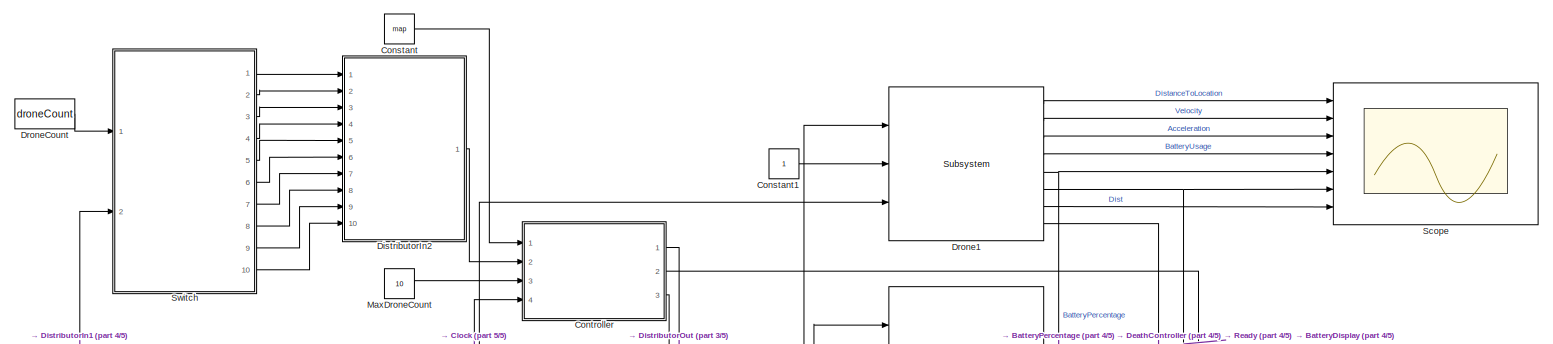
[diagram: root canvas - part 1/5, full width, top band]
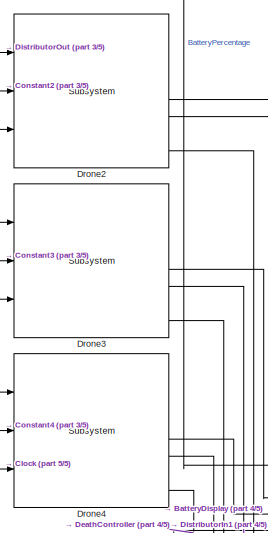
[diagram: root canvas - part 2/5, top center region]
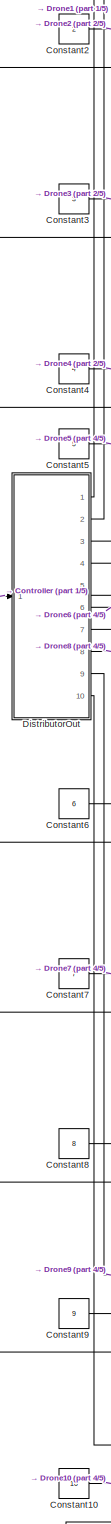
[diagram: root canvas - part 3/5, center side, full height]
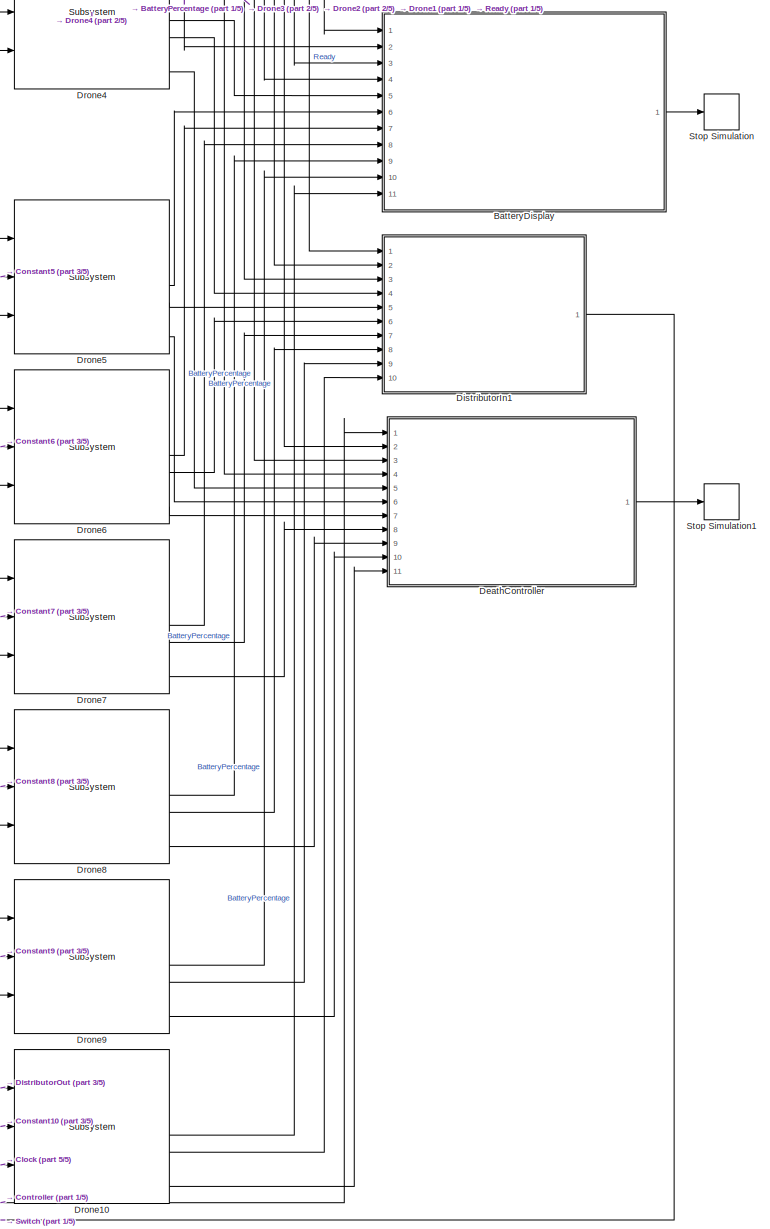
[diagram: root canvas - part 4/5, bottom right region]
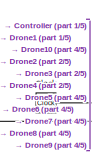
[diagram: root canvas - part 5/5, bottom left region]
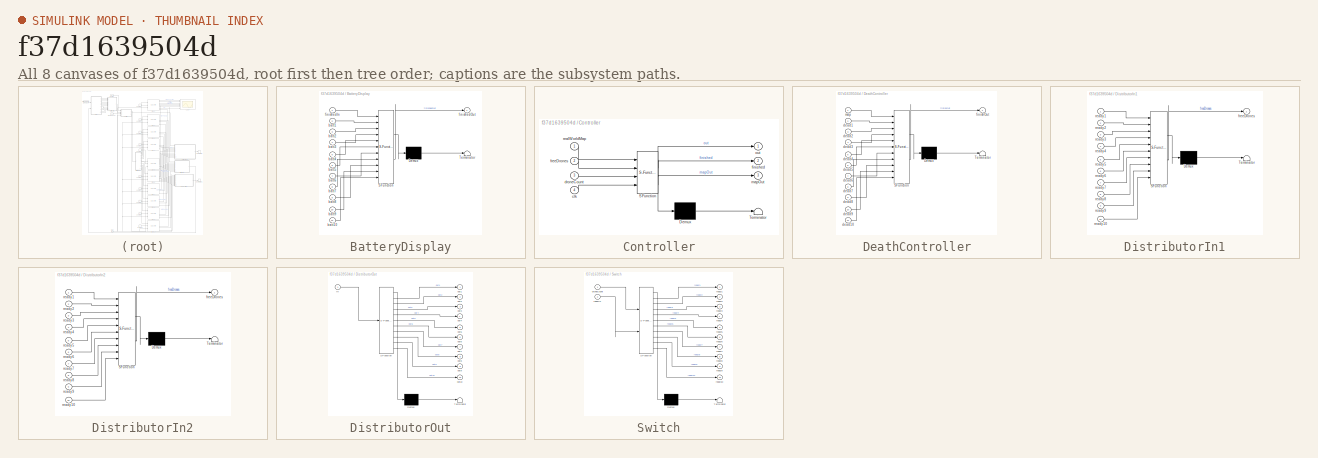
[diagram: thumbnail index - all 8 canvases of the model, root first then tree order]
MODEL slx_f37d1639504d
KIND model
CONFIG AbsTol = auto
CONFIG EnableMultiTasking = off
CONFIG FixedStep = 1
CONFIG MaxStep = auto
CONFIG MinStep = auto
CONFIG RelTol = 1e-3
CONFIG SampleTimeConstraint = Unconstrained
CONFIG SolverName = FixedStepAuto
CONFIG StartTime = 0.0
CONFIG StopTime = inf
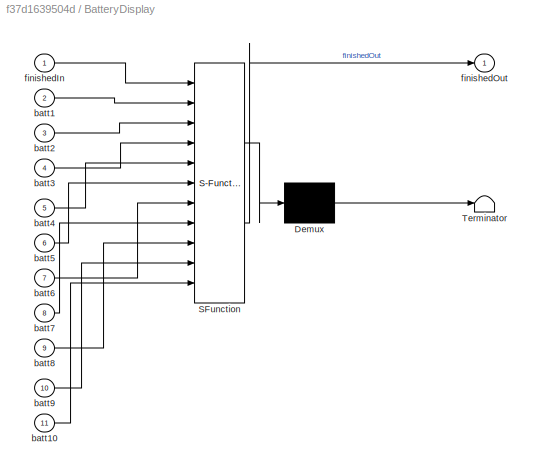
BLOCK [SubSystem] BatteryDisplay
  ErrorFcn = Stateflow.Translate.translate
  PermitHierarchicalResolution = ExplicitOnly
  Ports = [11, 1]
  RequestExecContextInheritance = off
  SFBlockType = MATLAB Function
  TreatAsAtomicUnit = on
BLOCK [Demux] BatteryDisplay/ Demux 
  Outputs = 1
  Ports = [1, 1]
BLOCK [S-Function] BatteryDisplay/ SFunction 
  EnableBusSupport = on
  FunctionName = sf_sfun
  PortCounts = [11 2]
  Ports = [11, 2]
  SFcnIsStateOwnerBlock = off
  SFunctionDeploymentMode = off
  Tag = Stateflow S-Function 13
BLOCK [Terminator] BatteryDisplay/ Terminator 
BLOCK [Inport] BatteryDisplay/batt1
  Port = 2
BLOCK [Inport] BatteryDisplay/batt10
  Port = 11
BLOCK [Inport] BatteryDisplay/batt2
  Port = 3
BLOCK [Inport] BatteryDisplay/batt3
  Port = 4
BLOCK [Inport] BatteryDisplay/batt4
  Port = 5
BLOCK [Inport] BatteryDisplay/batt5
  Port = 6
BLOCK [Inport] BatteryDisplay/batt6
  Port = 7
BLOCK [Inport] BatteryDisplay/batt7
  Port = 8
BLOCK [Inport] BatteryDisplay/batt8
  Port = 9
BLOCK [Inport] BatteryDisplay/batt9
  Port = 10
BLOCK [Inport] BatteryDisplay/finishedIn
BLOCK [Outport] BatteryDisplay/finishedOut
BLOCK [Clock] Clock
BLOCK [Constant] Constant
  Value = map
  VectorParams1D = off
BLOCK [Constant] Constant1
BLOCK [Constant] Constant10
  Value = 10
BLOCK [Constant] Constant2
  Value = 2
BLOCK [Constant] Constant3
  Value = 3
BLOCK [Constant] Constant4
  Value = 4
BLOCK [Constant] Constant5
  Value = 5
BLOCK [Constant] Constant6
  Value = 6
BLOCK [Constant] Constant7
  Value = 7
BLOCK [Constant] Constant8
  Value = 8
BLOCK [Constant] Constant9
  Value = 9
BLOCK [SubSystem] Controller
  ErrorFcn = Stateflow.Translate.translate
  PermitHierarchicalResolution = ExplicitOnly
  Ports = [4, 3]
  RequestExecContextInheritance = off
  SFBlockType = MATLAB Function
  TreatAsAtomicUnit = on
BLOCK [Demux] Controller/ Demux 
  Outputs = 1
  Ports = [1, 1]
BLOCK [S-Function] Controller/ SFunction 
  EnableBusSupport = on
  FunctionName = sf_sfun
  PortCounts = [4 4]
  Ports = [4, 4]
  SFcnIsStateOwnerBlock = off
  SFunctionDeploymentMode = off
  Tag = Stateflow S-Function 2
BLOCK [Terminator] Controller/ Terminator 
BLOCK [Inport] Controller/clk
  Port = 4
BLOCK [Inport] Controller/droneCount
  Port = 3
BLOCK [Outport] Controller/finished
  Port = 2
BLOCK [Inport] Controller/freeDrones
  Port = 2
BLOCK [Outport] Controller/mapOut
  Port = 3
BLOCK [Outport] Controller/out
BLOCK [Inport] Controller/realWorldMap
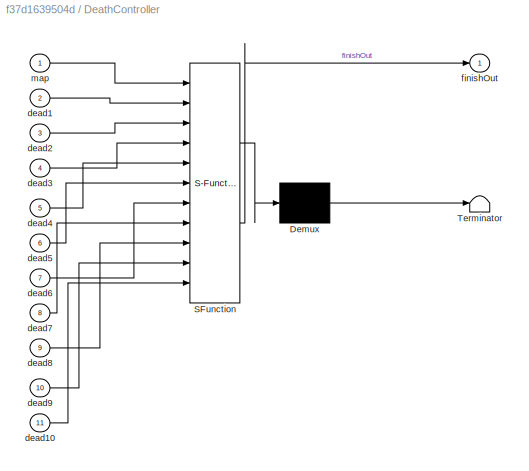
BLOCK [SubSystem] DeathController
  ErrorFcn = Stateflow.Translate.translate
  PermitHierarchicalResolution = ExplicitOnly
  Ports = [11, 1]
  RequestExecContextInheritance = off
  SFBlockType = MATLAB Function
  TreatAsAtomicUnit = on
BLOCK [Demux] DeathController/ Demux 
  Outputs = 1
  Ports = [1, 1]
BLOCK [S-Function] DeathController/ SFunction 
  EnableBusSupport = on
  FunctionName = sf_sfun
  PortCounts = [11 2]
  Ports = [11, 2]
  SFcnIsStateOwnerBlock = off
  SFunctionDeploymentMode = off
  Tag = Stateflow S-Function 14
BLOCK [Terminator] DeathController/ Terminator 
BLOCK [Inport] DeathController/dead1
  Port = 2
BLOCK [Inport] DeathController/dead10
  Port = 11
BLOCK [Inport] DeathController/dead2
  Port = 3
BLOCK [Inport] DeathController/dead3
  Port = 4
BLOCK [Inport] DeathController/dead4
  Port = 5
BLOCK [Inport] DeathController/dead5
  Port = 6
BLOCK [Inport] DeathController/dead6
  Port = 7
BLOCK [Inport] DeathController/dead7
  Port = 8
BLOCK [Inport] DeathController/dead8
  Port = 9
BLOCK [Inport] DeathController/dead9
  Port = 10
BLOCK [Outport] DeathController/finishOut
BLOCK [Inport] DeathController/map
BLOCK [SubSystem] DistributorIn1
  ErrorFcn = Stateflow.Translate.translate
  PermitHierarchicalResolution = ExplicitOnly
  Ports = [10, 1]
  RequestExecContextInheritance = off
  SFBlockType = MATLAB Function
  TreatAsAtomicUnit = on
BLOCK [Demux] DistributorIn1/ Demux 
  Outputs = 1
  Ports = [1, 1]
BLOCK [S-Function] DistributorIn1/ SFunction 
  EnableBusSupport = on
  FunctionName = sf_sfun
  PortCounts = [10 2]
  Ports = [10, 2]
  SFcnIsStateOwnerBlock = off
  SFunctionDeploymentMode = off
  Tag = Stateflow S-Function 22
BLOCK [Terminator] DistributorIn1/ Terminator 
BLOCK [Outport] DistributorIn1/freeDrones
BLOCK [Inport] DistributorIn1/ready1
BLOCK [Inport] DistributorIn1/ready10
  Port = 10
BLOCK [Inport] DistributorIn1/ready2
  Port = 2
BLOCK [Inport] DistributorIn1/ready3
  Port = 3
BLOCK [Inport] DistributorIn1/ready4
  Port = 4
BLOCK [Inport] DistributorIn1/ready5
  Port = 5
BLOCK [Inport] DistributorIn1/ready6
  Port = 6
BLOCK [Inport] DistributorIn1/ready7
  Port = 7
BLOCK [Inport] DistributorIn1/ready8
  Port = 8
BLOCK [Inport] DistributorIn1/ready9
  Port = 9
BLOCK [SubSystem] DistributorIn2
  ErrorFcn = Stateflow.Translate.translate
  PermitHierarchicalResolution = ExplicitOnly
  Ports = [10, 1]
  RequestExecContextInheritance = off
  SFBlockType = MATLAB Function
  TreatAsAtomicUnit = on
BLOCK [Demux] DistributorIn2/ Demux 
  Outputs = 1
  Ports = [1, 1]
BLOCK [S-Function] DistributorIn2/ SFunction 
  EnableBusSupport = on
  FunctionName = sf_sfun
  PortCounts = [10 2]
  Ports = [10, 2]
  SFcnIsStateOwnerBlock = off
  SFunctionDeploymentMode = off
  Tag = Stateflow S-Function 7
BLOCK [Terminator] DistributorIn2/ Terminator 
BLOCK [Outport] DistributorIn2/freeDrones
BLOCK [Inport] DistributorIn2/ready1
BLOCK [Inport] DistributorIn2/ready10
  Port = 10
BLOCK [Inport] DistributorIn2/ready2
  Port = 2
BLOCK [Inport] DistributorIn2/ready3
  Port = 3
BLOCK [Inport] DistributorIn2/ready4
  Port = 4
BLOCK [Inport] DistributorIn2/ready5
  Port = 5
BLOCK [Inport] DistributorIn2/ready6
  Port = 6
BLOCK [Inport] DistributorIn2/ready7
  Port = 7
BLOCK [Inport] DistributorIn2/ready8
  Port = 8
BLOCK [Inport] DistributorIn2/ready9
  Port = 9
BLOCK [SubSystem] DistributorOut
  ErrorFcn = Stateflow.Translate.translate
  PermitHierarchicalResolution = ExplicitOnly
  Ports = [1, 10]
  RequestExecContextInheritance = off
  SFBlockType = MATLAB Function
  TreatAsAtomicUnit = on
BLOCK [Demux] DistributorOut/ Demux 
  Outputs = 1
  Ports = [1, 1]
BLOCK [S-Function] DistributorOut/ SFunction 
  EnableBusSupport = on
  FunctionName = sf_sfun
  PortCounts = [1 11]
  Ports = [1, 11]
  SFcnIsStateOwnerBlock = off
  SFunctionDeploymentMode = off
  Tag = Stateflow S-Function 6
BLOCK [Terminator] DistributorOut/ Terminator 
BLOCK [Inport] DistributorOut/in
BLOCK [Outport] DistributorOut/out1
BLOCK [Outport] DistributorOut/out10
  Port = 10
BLOCK [Outport] DistributorOut/out2
  Port = 2
BLOCK [Outport] DistributorOut/out3
  Port = 3
BLOCK [Outport] DistributorOut/out4
  Port = 4
BLOCK [Outport] DistributorOut/out5
  Port = 5
BLOCK [Outport] DistributorOut/out6
  Port = 6
BLOCK [Outport] DistributorOut/out7
  Port = 7
BLOCK [Outport] DistributorOut/out8
  Port = 8
BLOCK [Outport] DistributorOut/out9
  Port = 9
BLOCK [Reference] Drone1  REF=drone/Subsystem  (lib defined in slx_0cdc8703c930, slx_1c70fff24f77, +7 more)
  Ports = [3, 8]
  SourceBlock = drone/Subsystem
  SourceType = SubSystem
BLOCK [Reference] Drone10  REF=drone/Subsystem  (lib defined in slx_0cdc8703c930, slx_1c70fff24f77, +7 more)
  Ports = [3, 8]
  SourceBlock = drone/Subsystem
  SourceType = SubSystem
BLOCK [Reference] Drone2  REF=drone/Subsystem  (lib defined in slx_0cdc8703c930, slx_1c70fff24f77, +7 more)
  Ports = [3, 8]
  SourceBlock = drone/Subsystem
  SourceType = SubSystem
BLOCK [Reference] Drone3  REF=drone/Subsystem  (lib defined in slx_0cdc8703c930, slx_1c70fff24f77, +7 more)
  Ports = [3, 8]
  SourceBlock = drone/Subsystem
  SourceType = SubSystem
BLOCK [Reference] Drone4  REF=drone/Subsystem  (lib defined in slx_0cdc8703c930, slx_1c70fff24f77, +7 more)
  Ports = [3, 8]
  SourceBlock = drone/Subsystem
  SourceType = SubSystem
BLOCK [Reference] Drone5  REF=drone/Subsystem  (lib defined in slx_0cdc8703c930, slx_1c70fff24f77, +7 more)
  Ports = [3, 8]
  SourceBlock = drone/Subsystem
  SourceType = SubSystem
BLOCK [Reference] Drone6   REF=drone/Subsystem  (lib defined in slx_0cdc8703c930, slx_1c70fff24f77, +7 more)
  Ports = [3, 8]
  SourceBlock = drone/Subsystem
  SourceType = SubSystem
BLOCK [Reference] Drone7  REF=drone/Subsystem  (lib defined in slx_0cdc8703c930, slx_1c70fff24f77, +7 more)
  Ports = [3, 8]
  SourceBlock = drone/Subsystem
  SourceType = SubSystem
BLOCK [Reference] Drone8  REF=drone/Subsystem  (lib defined in slx_0cdc8703c930, slx_1c70fff24f77, +7 more)
  Ports = [3, 8]
  SourceBlock = drone/Subsystem
  SourceType = SubSystem
BLOCK [Reference] Drone9  REF=drone/Subsystem  (lib defined in slx_0cdc8703c930, slx_1c70fff24f77, +7 more)
  Ports = [3, 8]
  SourceBlock = drone/Subsystem
  SourceType = SubSystem
BLOCK [Constant] DroneCount
  Value = droneCount
BLOCK [Constant] MaxDroneCount
  Value = 10
BLOCK [Scope] Scope
  Floating = off
  NumInputPorts = 7
  Ports = [7]
  ScopeSpecificationString = Simulink.scopes.TimeScopeBlockCfg('CurrentConfiguration', extmgr.ConfigurationSet(extmgr.Configuration('Core','General UI',true),extmgr.Configuration('Core','Source UI',true),extmgr.Configuration('Sources','WiredSimulink',true),extmgr.Configuration('Visuals','Time Domain',true,'SerializedDisplays',{struct('MinYLimReal','-10.15691','MaxYLimReal','14.63173','YLabelReal','','MinYLimMag','0.00000','Ma...<+1705ch>
BLOCK [Stop] Stop Simulation
BLOCK [Stop] Stop Simulation1
BLOCK [SubSystem] Switch
  ErrorFcn = Stateflow.Translate.translate
  PermitHierarchicalResolution = ExplicitOnly
  Ports = [2, 10]
  RequestExecContextInheritance = off
  SFBlockType = MATLAB Function
  TreatAsAtomicUnit = on
BLOCK [Demux] Switch/ Demux 
  Outputs = 1
  Ports = [1, 1]
BLOCK [S-Function] Switch/ SFunction 
  EnableBusSupport = on
  FunctionName = sf_sfun
  PortCounts = [2 11]
  Ports = [2, 11]
  SFcnIsStateOwnerBlock = off
  SFunctionDeploymentMode = off
  Tag = Stateflow S-Function 21
BLOCK [Terminator] Switch/ Terminator 
BLOCK [Inport] Switch/droneCount
BLOCK [Outport] Switch/ready1
BLOCK [Outport] Switch/ready10
  Port = 10
BLOCK [Outport] Switch/ready2
  Port = 2
BLOCK [Outport] Switch/ready3
  Port = 3
BLOCK [Outport] Switch/ready4
  Port = 4
BLOCK [Outport] Switch/ready5
  Port = 5
BLOCK [Outport] Switch/ready6
  Port = 6
BLOCK [Outport] Switch/ready7
  Port = 7
BLOCK [Outport] Switch/ready8
  Port = 8
BLOCK [Outport] Switch/ready9
  Port = 9
BLOCK [Inport] Switch/readyIn
  Port = 2
LINE BatteryDisplay:1 -> Stop Simulation:1
NET Clock:1 -> Controller:4, Drone10:3, Drone1:3, Drone2:3, Drone3:3, Drone4:3, Drone5:3, Drone6 :3, Drone7:3, Drone8:3, Drone9:3
LINE Constant10:1 -> Drone10:2
LINE Constant1:1 -> Drone1:2
LINE Constant2:1 -> Drone2:2
LINE Constant3:1 -> Drone3:2
LINE Constant4:1 -> Drone4:2
LINE Constant5:1 -> Drone5:2
LINE Constant6:1 -> Drone6 :2
LINE Constant7:1 -> Drone7:2
LINE Constant8:1 -> Drone8:2
LINE Constant9:1 -> Drone9:2
LINE Constant:1 -> Controller:1
LINE Controller:1 -> DistributorOut:1
LINE Controller:2 -> BatteryDisplay:1
LINE Controller:3 -> DeathController:1
LINE DeathController:1 -> Stop Simulation1:1
LINE DistributorIn1:1 -> Switch:2
LINE DistributorIn2:1 -> Controller:2
LINE DistributorOut:1 -> Drone1:1
LINE DistributorOut:10 -> Drone10:1
LINE DistributorOut:2 -> Drone2:1
LINE DistributorOut:3 -> Drone3:1
LINE DistributorOut:4 -> Drone4:1
LINE DistributorOut:5 -> Drone5:1
LINE DistributorOut:6 -> Drone6 :1
LINE DistributorOut:7 -> Drone7:1
LINE DistributorOut:8 -> Drone8:1
LINE DistributorOut:9 -> Drone9:1
LINE Drone10:5 -> BatteryDisplay:11
LINE Drone10:6 -> DistributorIn1:10
LINE Drone10:8 -> DeathController:11
LINE Drone1:1 -> Scope:1
LINE Drone1:2 -> Scope:2
LINE Drone1:3 -> Scope:3
LINE Drone1:4 -> Scope:4
NET Drone1:5 -> BatteryDisplay:2, Scope:5
NET Drone1:6 -> DistributorIn1:1, Scope:6
LINE Drone1:7 -> Scope:7
LINE Drone1:8 -> DeathController:2
LINE Drone2:5 -> BatteryDisplay:3
LINE Drone2:6 -> DistributorIn1:2
LINE Drone2:8 -> DeathController:3
LINE Drone3:5 -> BatteryDisplay:4
LINE Drone3:6 -> DistributorIn1:3
LINE Drone3:8 -> DeathController:4
LINE Drone4:5 -> BatteryDisplay:5
LINE Drone4:6 -> DistributorIn1:4
LINE Drone4:8 -> DeathController:5
LINE Drone5:5 -> BatteryDisplay:6
LINE Drone5:6 -> DistributorIn1:5
LINE Drone5:8 -> DeathController:6
LINE Drone6 :5 -> BatteryDisplay:7
LINE Drone6 :6 -> DistributorIn1:6
LINE Drone6 :8 -> DeathController:7
LINE Drone7:5 -> BatteryDisplay:8
LINE Drone7:6 -> DistributorIn1:7
LINE Drone7:8 -> DeathController:8
LINE Drone8:5 -> BatteryDisplay:9
LINE Drone8:6 -> DistributorIn1:8
LINE Drone8:8 -> DeathController:9
LINE Drone9:5 -> BatteryDisplay:10
LINE Drone9:6 -> DistributorIn1:9
LINE Drone9:8 -> DeathController:10
LINE DroneCount:1 -> Switch:1
LINE MaxDroneCount:1 -> Controller:3
LINE Switch:1 -> DistributorIn2:1
LINE Switch:10 -> DistributorIn2:10
LINE Switch:2 -> DistributorIn2:2
LINE Switch:3 -> DistributorIn2:3
LINE Switch:4 -> DistributorIn2:4
LINE Switch:5 -> DistributorIn2:5
LINE Switch:6 -> DistributorIn2:6
LINE Switch:7 -> DistributorIn2:7
LINE Switch:8 -> DistributorIn2:8
LINE Switch:9 -> DistributorIn2:9
note: NET lines group one-source signal fan-out (src -> all destinations, sorted); 1:1 wires keep LINE
CHART DistributorIn1 states=1 transitions=1
  STATE_LABEL 'eML_blk_kernel()'
  STATE_LABEL 'SCRIPT:\nfunction freeDrones = fcn(ready1, ready2, ready3, ready4, ready5, ready6, ready7, ready8, ready9, ready10)\n    %collects the "ready signal" from all drones to a single port\n    freeDrones = [ready1 ready2 ready3 ready4 ready5 ready6 ready7 ready8 ready9 ready10];\nend'
CHART Controller states=1 transitions=1
  STATE_LABEL 'eML_blk_kernel()'
  STATE_LABEL 'SCRIPT:\nfunction [out, finished, mapOut] = fcn(realWorldMap, freeDrones, droneCount, clk)\n    persistent index\n    persistent indexLimit\n    persistent path\n    persistent lastXY\n    persistent workingDronesCount\n    persistent cameBackDronesCount\n    persistent map\n    persistent workingDrones\n    persistent inTermMode\n    \n    %init persistent values\n    if isempty(inTermMode)\n        inTermMode...<+3608ch>'
CHART DistributorOut states=1 transitions=1
  STATE_LABEL 'eML_blk_kernel()'
  STATE_LABEL 'SCRIPT:\nfunction [out1, out2, out3, out4, out5, out6, out7, out8, out9, out10] = fcn(in)\n    %distributes the out signal from the controller to the drones\n    out1 = [1 1 -1 0];\n    out2 = [1 1 -1 0];    \n    out3 = [1 1 -1 0];\n    out4 = [1 1 -1 0];    \n    out5 = [1 1 -1 0];\n    out6 = [1 1 -1 0];\n    out7 = [1 1 -1 0];    \n    out8 = [1 1 -1 0];\n    out9 = [1 1 -1 0];    \n    out10 = [1 1 -1 0]...<+213ch>'
CHART DistributorIn2 states=1 transitions=1
  STATE_LABEL 'eML_blk_kernel()'
  STATE_LABEL 'SCRIPT:\nfunction freeDrones = fcn(ready1, ready2, ready3, ready4, ready5, ready6, ready7, ready8, ready9, ready10)\n    %collects the "ready signal" from all drones to a single port\n    freeDrones = [ready1 ready2 ready3 ready4 ready5 ready6 ready7 ready8 ready9 ready10];\nend'
CHART BatteryDisplay states=1 transitions=1
  STATE_LABEL 'eML_blk_kernel()'
  STATE_LABEL 'SCRIPT:\nfunction finishedOut = fcn(finishedIn, batt1, batt2, batt3, batt4, batt5, batt6, batt7, batt8, batt9, batt10)\n    %displays battery percentage of all drones and terminates the\n    %simulation\n    finishedOut = finishedIn;\n    if finishedIn == 1\n        fprintf("\\n\\n");\n        fprintf("Drone [1] battery capacity: [%f%%]\\n", batt1*100);\n        fprintf("Drone [2] battery capacity: [%f%%]\\n"...<+571ch>'
CHART DeathController states=1 transitions=1
  STATE_LABEL 'eML_blk_kernel()'
  STATE_LABEL 'SCRIPT:\nfunction finishOut = fcn(map, dead1, dead2, dead3, dead4, dead5, dead6, dead7, dead8, dead9, dead10)\n    %stops the simulation if all drones are dead\n    allDead = 0;\n    if dead1 == 1 && dead2 == 1 && dead3 == 1 && dead4 == 1 && dead5 == 1 && dead6 == 1 && dead7 == 1 && dead8 == 1 && dead9 == 1 && dead10 == 1\n        allDead = 1;\n    end\n    if allDead == 1\n        fprintf("All drones die...<+88ch>'
CHART Switch states=1 transitions=1
  STATE_LABEL 'eML_blk_kernel()'
  STATE_LABEL 'SCRIPT:\nfunction [ready1, ready2, ready3, ready4, ready5, ready6, ready7, ready8, ready9, ready10] = fcn(droneCount, readyIn)\n    %configures the desired drone count\n    out = zeros(10);\n    i = 1;\n    while i <= droneCount\n        out(i) = readyIn(i);\n        i = i +1;\n    end\n    \n    ready1 = out(1);\n    ready2 = out(2);\n    ready3 = out(3);\n    ready4 = out(4);\n    ready5 = out(5);\n    ready6 ...<+105ch>'
CHART  states=0 transitions=0
CHART  states=0 transitions=0
CHART  states=0 transitions=0
CHART  states=0 transitions=0
CHART  states=0 transitions=0
CHART  states=0 transitions=0
CHART  states=0 transitions=0
